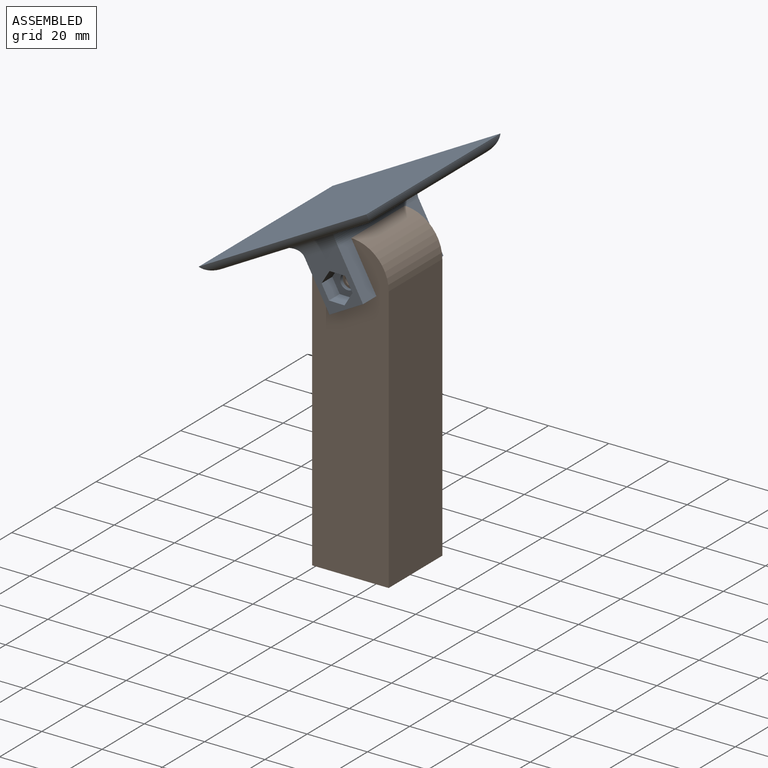
[diagram: assembled view]
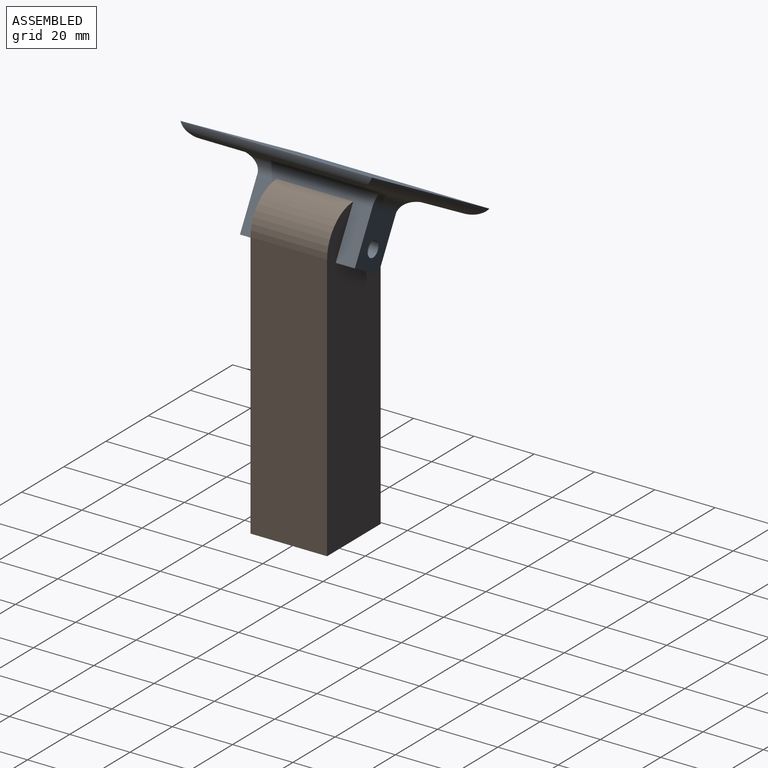
[diagram: assembled view, second angle]
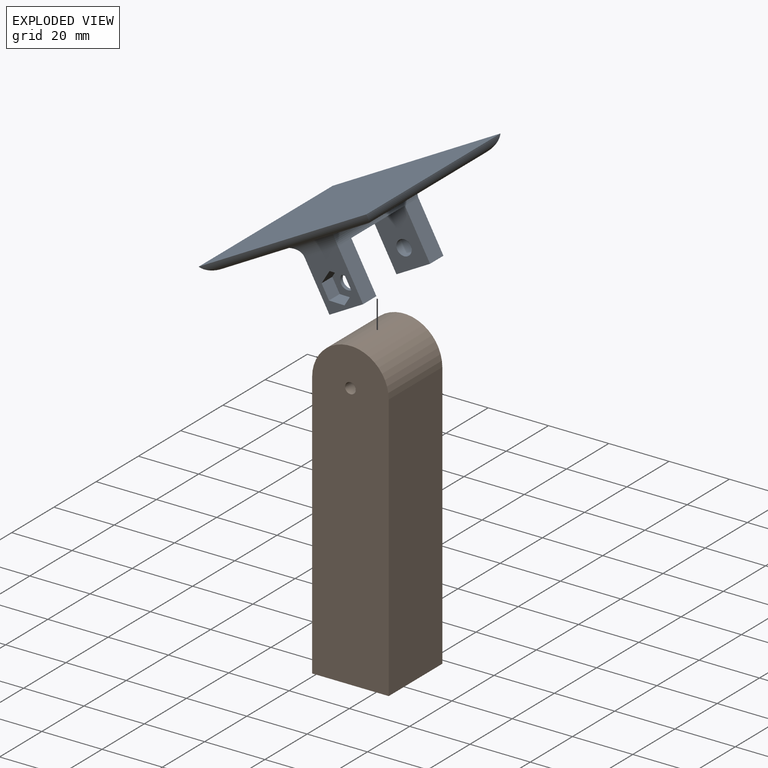
[diagram: exploded view]
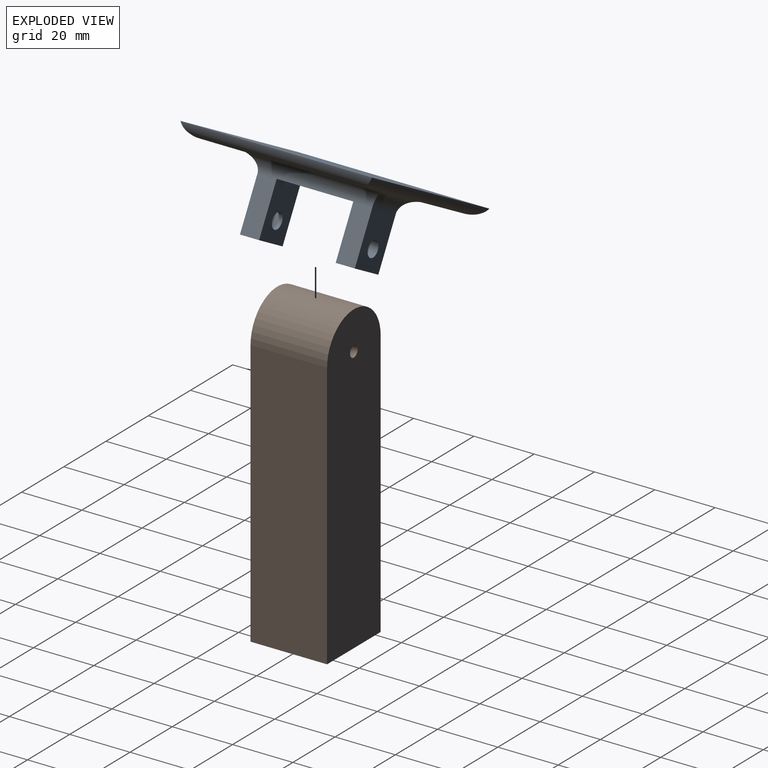
[diagram: exploded view, second angle]
ASSEMBLY  parts=2 mates=2
PART A: 30 faces, bbox 63.5x63.5x25.4 mm
  f0: plane 17.15x6.35mm, normal (1,0,0), area 108.9mm2, adj f5,f6,f9,f23
  f1: plane 17.15x6.35mm, normal (-1,0,0), area 108.9mm2, adj f2,f7,f10,f24
  f2: plane 17.15x12.7mm, normal (0,-1,0), area 149.3mm2, adj f1,f3,f7,f13,f14,f15,f16,f17
  f3: plane 17.15x6.35mm, normal (1,0,0), area 108.9mm2, adj f2,f7,f10,f23
  f4: plane 17.15x6.35mm, normal (-1,0,0), area 108.9mm2, adj f5,f6,f9,f24
  f5: plane 17.15x12.7mm, normal (0,1,0), area 197.5mm2, adj f0,f4,f6,f21,f25
  f6: plane 12.7x6.35mm, normal (0,0,-1), area 80.6mm2, adj f0,f4,f5,f9
  f7: plane 12.7x6.35mm, normal (0,0,-1), area 80.6mm2, adj f1,f2,f3,f10
  f8: cylinder r=12.7mm len=25.4mm, axis (0,-1,0), area 338mm2, adj f9,f10,f23,f24
  f9: plane 19.05x12.71mm, normal (0,-1,0), area 214.7mm2, adj f0,f4,f6,f8,f21,f23,f24
  f10: plane 19.05x12.71mm, normal (0,1,0), area 214.7mm2, adj f1,f3,f7,f8,f20,f23,f24
  f11: plane 54.08x54.08mm, normal (0,0,-1), area 1821.6mm2, adj f22,f23,f24,f25,f26,f27,f28,f29
  f12: plane 63.5x63.5mm, normal (0,0,1), area 4032.2mm2, adj f26,f27,f28,f29
  f13: plane 5.13x5.08mm, normal (-1,0,0), area 26.1mm2, adj f2,f14,f18,f19
  f14: plane 5.08x4.45mm, normal (-0.5,0,-0.87), area 26.1mm2, adj f2,f13,f15,f19
  f15: plane 5.08x4.45mm, normal (0.5,0,-0.87), area 26.1mm2, adj f2,f14,f16,f19
  f16: plane 5.13x5.08mm, normal (1,0,0), area 26.1mm2, adj f2,f15,f17,f19
  f17: plane 5.08x4.45mm, normal (0.5,0,0.87), area 26.1mm2, adj f2,f16,f18,f19
  f18: plane 5.08x4.45mm, normal (-0.5,0,0.87), area 26.1mm2, adj f2,f13,f17,f19
  f19: plane 10.27x8.89mm, normal (0,-1,0), area 48.2mm2, adj f13,f14,f15,f16,f17,f18,f20
  f20: cylinder r=2.54mm len=5.08mm, axis (0,1,0), area 20.3mm2, adj f10,f19
  f21: cylinder r=2.54mm len=6.35mm, axis (0,1,0), area 101.3mm2, adj f5,f9
  f22: cylinder r=5.08mm len=22.86mm, axis (-1,0,0), area 130.8mm2, adj f2,f11,f23,f24
  f23: cylinder r=5.08mm len=48.26mm, axis (0,1,0), area 328.4mm2, adj f0,f3,f8,f9,f10,f11,f22,f25
  f24: cylinder r=5.08mm len=48.26mm, axis (0,-1,0), area 328.4mm2, adj f1,f4,f8,f9,f10,f11,f22,f25
  f25: cylinder r=5.08mm len=22.86mm, axis (-1,0,0), area 130.8mm2, adj f5,f11,f23,f24
  f26: cylinder r=5.08mm len=63.5mm, axis (1,0,0), area 358.2mm2, adj f11,f12,f27,f28
  f27: cylinder r=5.08mm len=63.5mm, axis (0,1,0), area 358.2mm2, adj f11,f12,f26,f29
  f28: cylinder r=5.08mm len=63.5mm, axis (0,1,0), area 358.2mm2, adj f11,f12,f26,f29
  f29: cylinder r=5.08mm len=63.5mm, axis (1,0,0), area 358.2mm2, adj f11,f12,f27,f28
PART B: 14 faces, bbox 25.4x25.4x101.6 mm
  f0: plane 25.4x25.4mm, normal (0,0,-1), area 505.5mm2, adj f1,f3,f5,f6,f7,f8,f9,f10
  f1: plane 88.9x25.4mm, normal (1,0,0), area 2258.1mm2, adj f0,f2,f5,f6
  f2: cylinder r=12.7mm len=25.4mm, axis (0,1,0), area 1013.4mm2, adj f1,f3,f5,f6
  f3: plane 88.9x25.4mm, normal (-1,0,0), area 2258.1mm2, adj f0,f2,f5,f6
  f4: cylinder r=1.79mm len=25.4mm, axis (0,1,0), area 285.8mm2, adj f5,f6
  f5: plane 101.6x25.4mm, normal (0,-1,0), area 2501.3mm2, adj f0,f1,f2,f3,f4
  f6: plane 101.6x25.4mm, normal (0,1,0), area 2501.3mm2, adj f0,f1,f2,f3,f4
  f7: plane 19.05x7.33mm, normal (-1,0,0), area 139.7mm2, adj f0,f8,f12,f13
  f8: plane 19.05x6.35mm, normal (-0.5,0.87,0), area 139.7mm2, adj f0,f7,f9,f13
  f9: plane 19.05x6.35mm, normal (0.5,0.87,0), area 139.7mm2, adj f0,f8,f10,f13
  f10: plane 19.05x7.33mm, normal (1,0,0), area 139.7mm2, adj f0,f9,f11,f13
  f11: plane 19.05x6.35mm, normal (0.5,-0.87,0), area 139.7mm2, adj f0,f10,f12,f13
  f12: plane 19.05x6.35mm, normal (-0.5,-0.87,0), area 139.7mm2, adj f0,f7,f11,f13
  f13: plane 14.66x12.7mm, normal (0,0,-1), area 139.7mm2, adj f7,f8,f9,f10,f11,f12
PLACE A rot(axis=(0,-1,0),28.8deg) t=(-68.3,-17.56,74.28)mm
PLACE B t=(-78.49,14.19,-6)mm fixed
MATE cylindrical A.f8 <-> B.f2  axis (0,-1,0) through (-65.79,14.19,82.9)mm
MATE planar B.f6 <-> A.f9  axis (0,1,0) through (-65.79,14.19,43.32)mm
